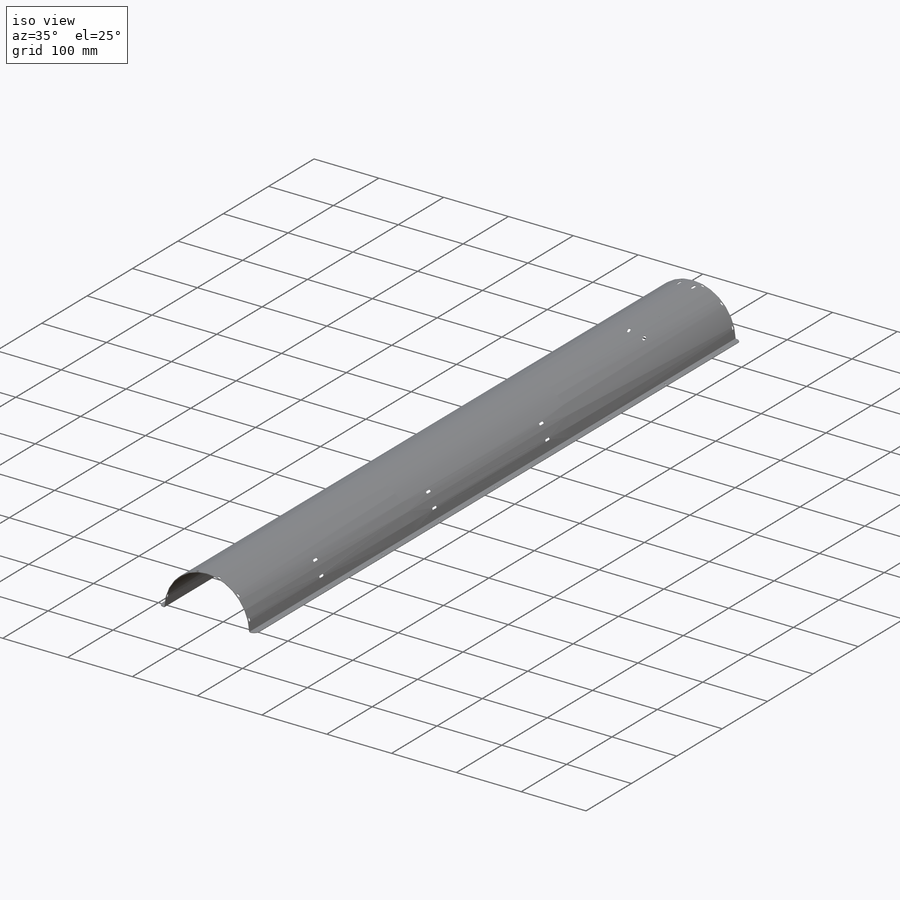
[diagram: iso view]
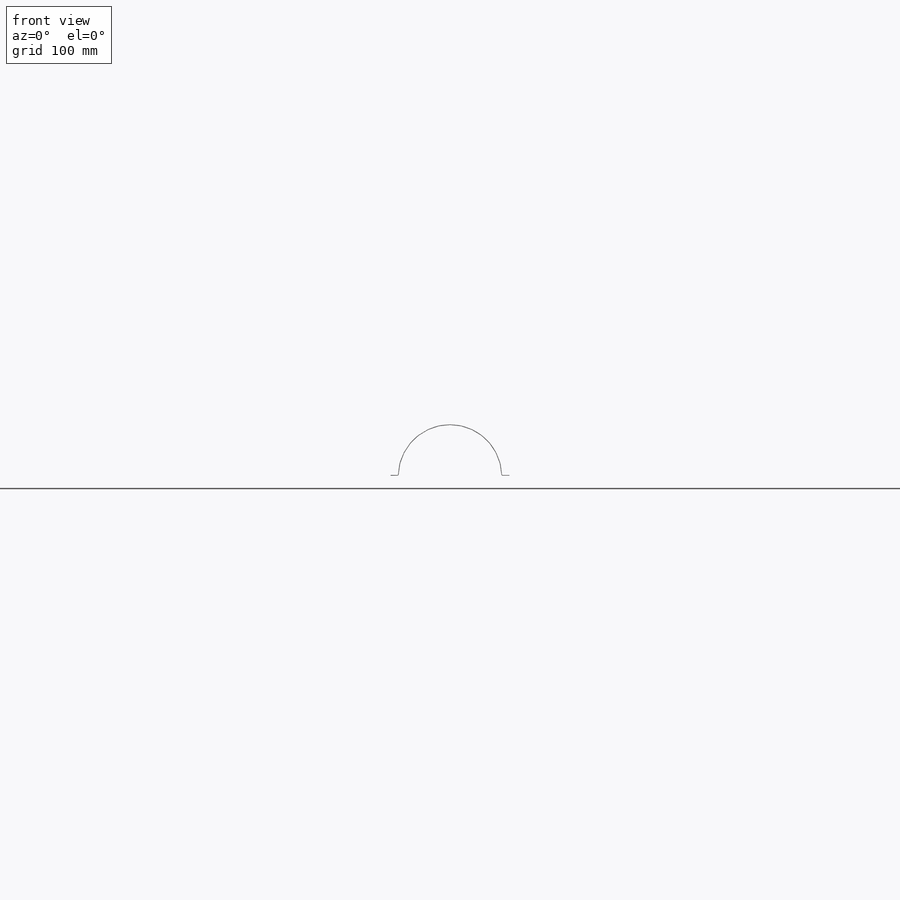
[diagram: front view]
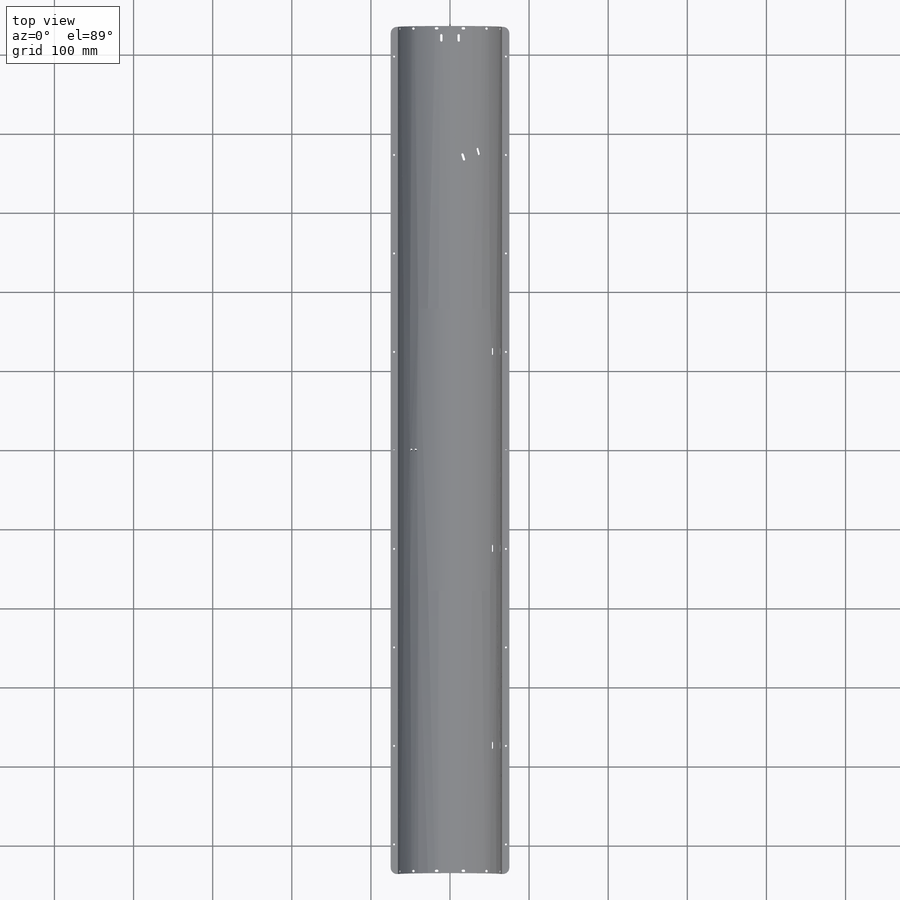
[diagram: top view]
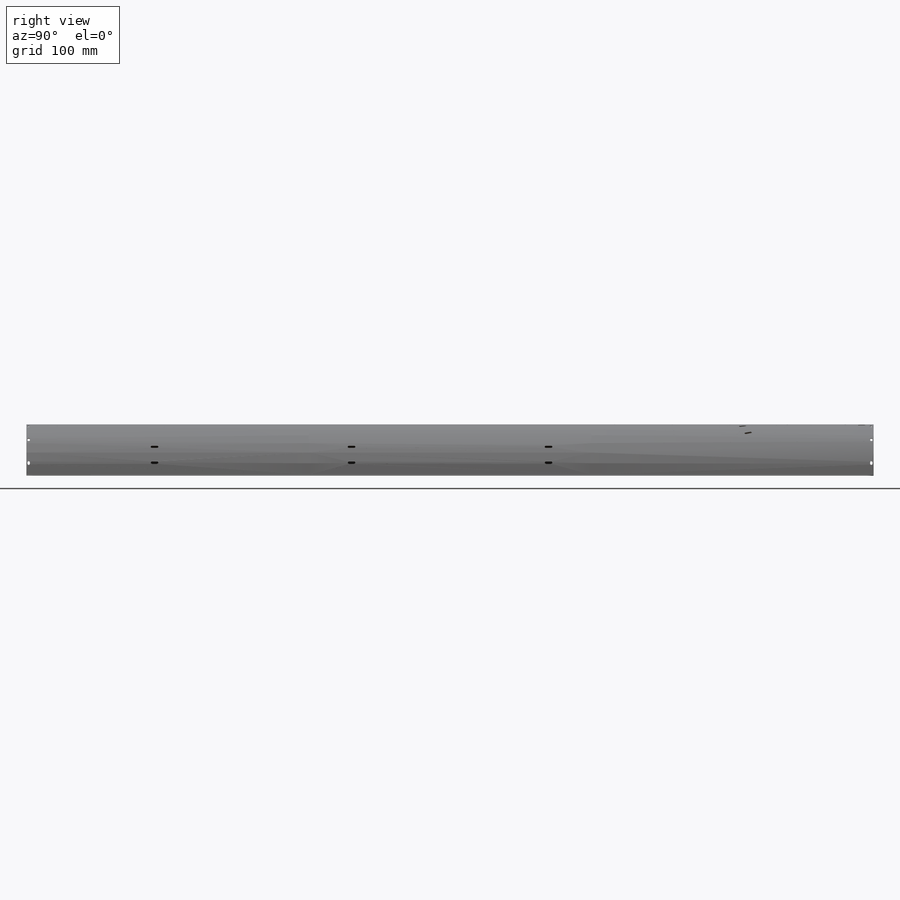
[diagram: right view]
SOLIDWORKS PART (.sldprt)
format: sldprt  version: not decoded by parser v0  size: 1,272,832 bytes
history: native  units: mm
features: sketch x22, plane x11, cut_extrude x6, sheet_metal_op x4, hole x3, mirror x3, pattern_linear x2, material x1, fillet x1, pattern_circular x1 + 3 further entries (+11 scaffold rows collapsed; 1 parser-record rows omitted)
feature tree (69):
  scaffold x11  (default folders/planes/origin — collapsed)
  material  "6061-T6 (SS)"
  sketch  "Sketch1"  dims[D1=130.0mm D2=10.0mm D3=1.016mm]
  sheet_metal_op  "Sheet-Metal1"
  sheet_metal_op  "Base-Flange1"
  sheet_metal_op  "BaseBend3"
  sheet_metal_op  "BaseBend4"
  fillet  "Fillet1"  Radius=8mm
  plane  "Plane1"  Offset=2.97mm
  sketch  "Sketch3"  dims[c1.D1=~41.19023mm c2.D1=15.0deg]
  hole  "#4 Clearance Hole1"  Diameter=2.9464mm Depth=135.89mm
  sketch  "3DSketch1"  dims[D1=~66.656935mm]
  sketch  "Sketch2"  dims[hole-wizard template sketch: 47 standard entries collapsed; hole parameters kept: c15.Hole Depth=135.89mm c15.D3=~14.816244mm c15.Drill Angle=118.0deg]
  plane  "Plane2"
  sketch  "Sketch4"  dims[D1=2.0mm]
  cut_extrude  "Cut-Extrude2"  Depth=10mm
  pattern_circular  "CirPattern1"  Count=6 Angle=30deg
  mirror  "Mirror1"
  hole  "#2 Clearance Hole1"  Diameter=2.4384mm Depth=64.746mm
  sketch  "Sketch6"  dims[D1=4.2705mm D2=37.5mm]
  sketch  "Sketch5"  dims[hole-wizard template sketch: 55 standard entries collapsed; hole parameters kept: c17.Thru Hole Depth=64.746mm c17.Near C'Sink Dia.=2.794mm c17.D4=~3.666174mm c17.Near C'Sink Angle=82.0deg]
  pattern_linear  "LPattern1"  Count1=9 Count2=1 Spacing1=124.5mm Spacing2=10mm
  mirror  "Mirror2"
  sketch  "Sketch7"  dims[c1.D1=~15.180171mm c2.D1=~3.395354deg c2.D2=~10.10844mm c3.D2=45.0deg]
  hole  "CSK for #2 Flat Head Machine Screw1"  Diameter=2.4384mm Depth=121.162271mm
  sketch  "3DSketch2"
  sketch  "Sketch8"  dims[hole-wizard template sketch: 55 standard entries collapsed; hole parameters kept: c17.Thru Hole Depth=~121.162271mm c17.Near C'Sink Dia.=4.3688mm c17.D4=~3.666174mm c17.Near C'Sink Angle=82.0deg]
  plane  "Plane3"  Offset=373.5mm
  sketch  "Sketch9"  dims[c1.D1=~152.48488mm c2.D1=155.0deg c2.D2=11.1125mm]
  plane  "Plane5"
  sketch  "Sketch13"  dims[D1=6.35mm D2=3.175mm]
  cut_extrude  "Cut-Extrude3"  Depth=10mm
  plane  "Plane6"
  sketch  "Sketch14"  dims[D1=6.35mm D2=3.175mm]
  cut_extrude  "Cut-Extrude4"  Depth=10mm
  pattern_linear  "LPattern2"  Count1=3 Count2=1 Spacing1=249mm Spacing2=10mm
  plane  "Plane4"  Offset=15mm
  sketch  "Sketch11"  dims[D1=11.1125mm]
  plane  "Plane7"
  sketch  "Sketch15"  dims[D1=6.35mm D2=3.175mm]
  cut_extrude  "Cut-Extrude5"  Depth=10mm
  mirror  "Mirror3"
  plane  "Plane8"  Offset=373.5mm
  sketch  "Sketch16"  dims[c1.D1=~39.490935mm c2.D1=66.0deg]
  plane  "Plane9"
  sketch  "Sketch17"  dims[c1.D1=~31.089055mm c2.D1=18.6deg c2.D2=22.225mm]
  sketch  "3DSketch3"
  plane  "Plane10"
  sketch  "Sketch18"  dims[D1=6.35mm D2=3.175mm]
  cut_extrude  "Cut-Extrude6"  Depth=10mm
  plane  "Plane11"
  sketch  "Sketch19"  dims[D1=6.35mm D2=3.175mm]
  cut_extrude  "Cut-Extrude7"  Depth=10mm
  "Flat-Pattern1"
  sketch  "Bend-Lines1"
  sketch  "Bounding-Box1"
  "Flatten-<BaseBend3>1"
  "Flatten-<BaseBend4>1"
  parser-record x1  (decoder bookkeeping rows leaked as tree rows — omitted from the tree; the rows remain in map.json)
decode coverage: 31 of 42 modeling features carry decoded parameters; 3 rows unclassified (native names shown)
note: ~ marks probable driven/reference dimensions
note: suppression state not decoded; provenance and decode notes live in map.json
